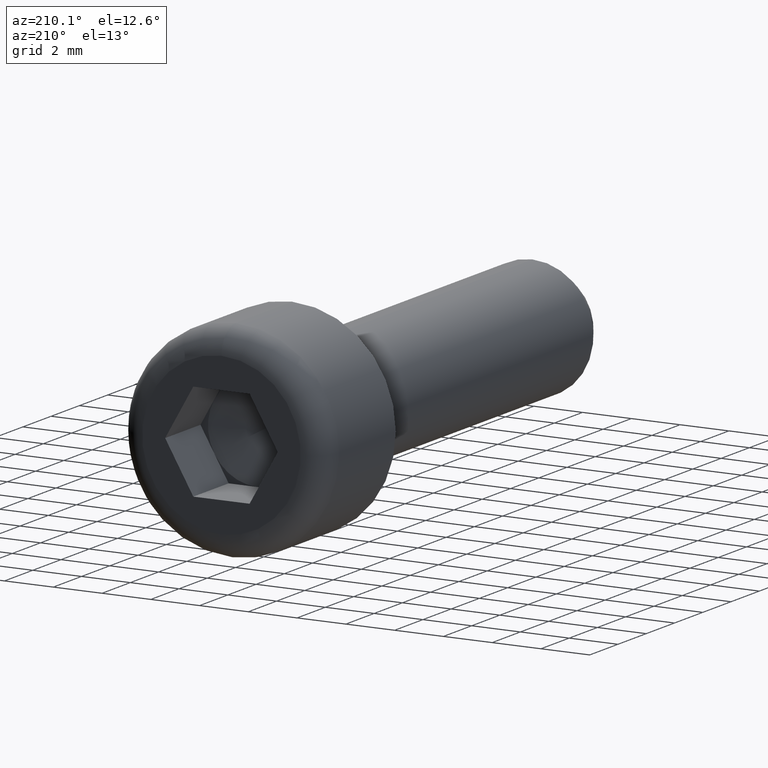
[diagram: clean part render]
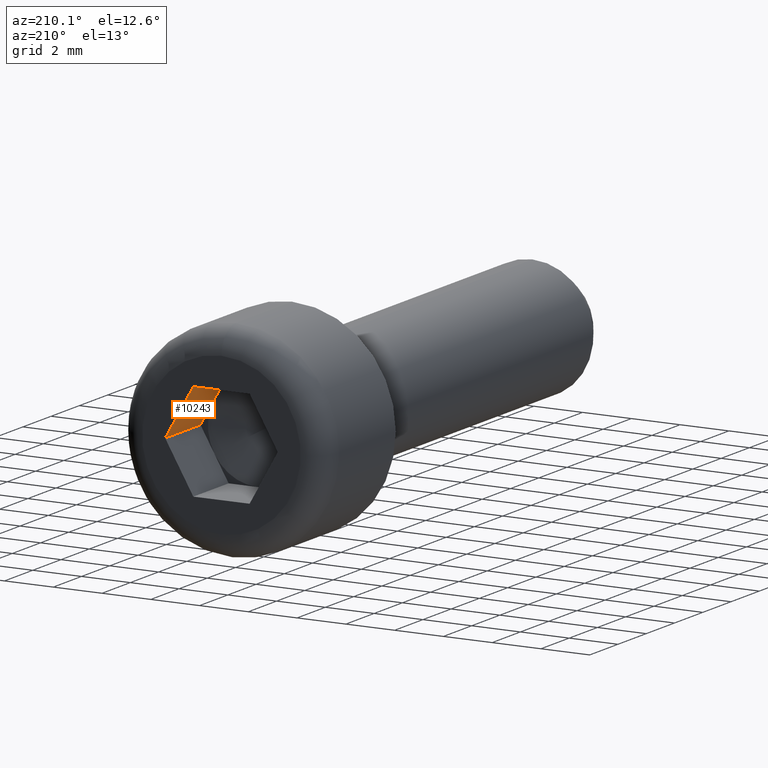
[diagram: same view with one face highlighted and labeled with its STEP entity id]
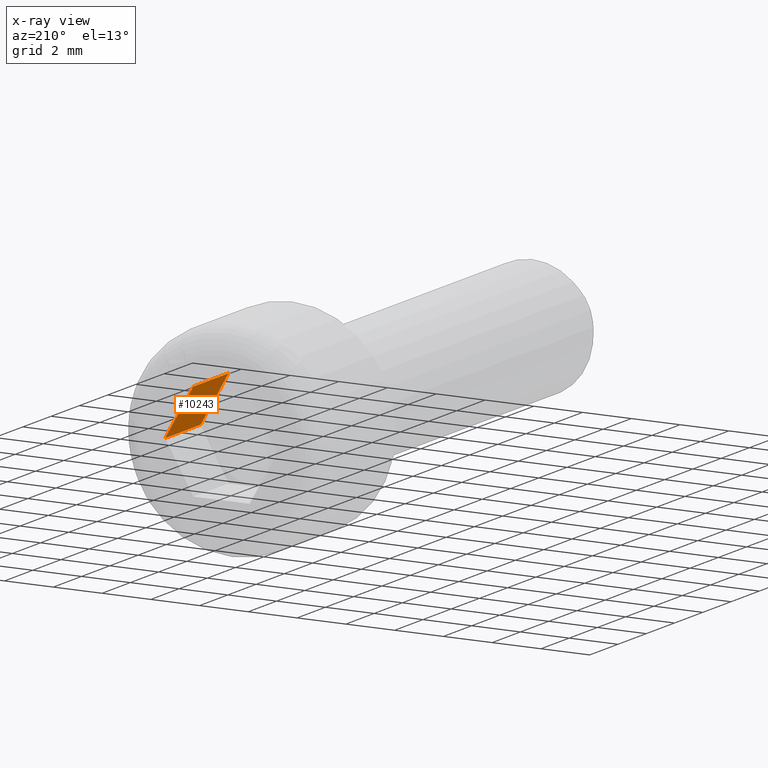
[diagram: x-ray of the same camera — body ghosted, the highlighted face saturated]
A machine part, auxiliary view. The second image highlights one B-rep face of the part: STEP entity #10243.
The next image is the same camera in x-ray: the body ghosted, the highlighted face saturated — about 0% of this face is hidden behind the body in this view.
In plain terms, the highlighted planar face has unit normal (0.866, 0, 0.5).
Its self-contained STEP definition (entity closure, byte-faithful):
#73 = LINE ( 'NONE', #11659, #11987 ) ;
#175 = CARTESIAN_POINT ( 'NONE',  ( 1.154700538379251200, 2.500000000000000000, 2.000000000000000000 ) ) ;
#210 = PLANE ( 'NONE',  #11296 ) ;
#1040 = CARTESIAN_POINT ( 'NONE',  ( 1.154700538379251200, 5.000000000000000000, 2.000000000000000000 ) ) ;
#1222 = ORIENTED_EDGE ( 'NONE', *, *, #14050, .F. ) ;
#1419 = ORIENTED_EDGE ( 'NONE', *, *, #3222, .F. ) ;
#1511 = ORIENTED_EDGE ( 'NONE', *, *, #7578, .F. ) ;
#3100 = VECTOR ( 'NONE', #6077, 1000.000000000000200 ) ;
#3222 = EDGE_CURVE ( 'NONE', #12890, #10141, #73, .T. ) ;
#3580 = FACE_OUTER_BOUND ( 'NONE', #9534, .T. ) ;
#3918 = CARTESIAN_POINT ( 'NONE',  ( 1.154700538379251200, 2.500000000000000000, 2.000000000000000000 ) ) ;
#4124 = EDGE_CURVE ( 'NONE', #8226, #14661, #8874, .T. ) ;
#4332 = LINE ( 'NONE', #11205, #10096 ) ;
#4983 = CARTESIAN_POINT ( 'NONE',  ( 1.732050807568877000, 2.500000000000000400, 1.000000000000000400 ) ) ;
#5994 = LINE ( 'NONE', #8986, #3100 ) ;
#6026 = DIRECTION ( 'NONE',  ( -0.0000000000000000000, 1.000000000000000000, -0.0000000000000000000 ) ) ;
#6077 = DIRECTION ( 'NONE',  ( 0.5000000000000002200, 0.0000000000000000000, -0.8660254037844384900 ) ) ;
#6199 = DIRECTION ( 'NONE',  ( 0.8660254037844386000, 0.0000000000000000000, 0.5000000000000003300 ) ) ;
#6335 = ORIENTED_EDGE ( 'NONE', *, *, #4124, .T. ) ;
#6685 = EDGE_CURVE ( 'NONE', #14661, #10916, #4332, .T. ) ;
#6903 = VECTOR ( 'NONE', #6026, 1000.000000000000000 ) ;
#7578 = EDGE_CURVE ( 'NONE', #10141, #10916, #7726, .T. ) ;
#7726 = LINE ( 'NONE', #14054, #8296 ) ;
#7778 = CARTESIAN_POINT ( 'NONE',  ( 2.309401076758503400, 2.500000000000000000, 2.611059807007824700E-016 ) ) ;
#8072 = DIRECTION ( 'NONE',  ( -0.0000000000000000000, 1.000000000000000000, -0.0000000000000000000 ) ) ;
#8226 = VERTEX_POINT ( 'NONE', #3918 ) ;
#8296 = VECTOR ( 'NONE', #8072, 1000.000000000000000 ) ;
#8874 = LINE ( 'NONE', #175, #6903 ) ;
#8986 = CARTESIAN_POINT ( 'NONE',  ( 1.154700538379251200, 2.500000000000000000, 2.000000000000000000 ) ) ;
#9534 = EDGE_LOOP ( 'NONE', ( #13453, #1511, #1419, #1222, #6335 ) ) ;
#9796 = CARTESIAN_POINT ( 'NONE',  ( 1.154700538379251200, 2.500000000000000000, 2.000000000000000000 ) ) ;
#10096 = VECTOR ( 'NONE', #13593, 1000.000000000000200 ) ;
#10141 = VERTEX_POINT ( 'NONE', #7778 ) ;
#10243 = ADVANCED_FACE ( 'NONE', ( #3580 ), #210, .F. ) ;
#10744 = DIRECTION ( 'NONE',  ( 0.5000000000000002200, 0.0000000000000000000, -0.8660254037844384900 ) ) ;
#10916 = VERTEX_POINT ( 'NONE', #14608 ) ;
#11205 = CARTESIAN_POINT ( 'NONE',  ( 1.154700538379251200, 5.000000000000000000, 2.000000000000000000 ) ) ;
#11296 = AXIS2_PLACEMENT_3D ( 'NONE', #9796, #6199, #10744 ) ;
#11456 = DIRECTION ( 'NONE',  ( 0.5000000000000002200, 0.0000000000000000000, -0.8660254037844384900 ) ) ;
#11659 = CARTESIAN_POINT ( 'NONE',  ( 1.154700538379251200, 2.500000000000000000, 2.000000000000000000 ) ) ;
#11987 = VECTOR ( 'NONE', #11456, 1000.000000000000200 ) ;
#12890 = VERTEX_POINT ( 'NONE', #4983 ) ;
#13453 = ORIENTED_EDGE ( 'NONE', *, *, #6685, .T. ) ;
#13593 = DIRECTION ( 'NONE',  ( 0.5000000000000002200, 0.0000000000000000000, -0.8660254037844384900 ) ) ;
#14050 = EDGE_CURVE ( 'NONE', #8226, #12890, #5994, .T. ) ;
#14054 = CARTESIAN_POINT ( 'NONE',  ( 2.309401076758503400, 2.500000000000000000, 2.611059807007824700E-016 ) ) ;
#14608 = CARTESIAN_POINT ( 'NONE',  ( 2.309401076758503400, 5.000000000000000000, 2.611059807007824700E-016 ) ) ;
#14661 = VERTEX_POINT ( 'NONE', #1040 ) ;